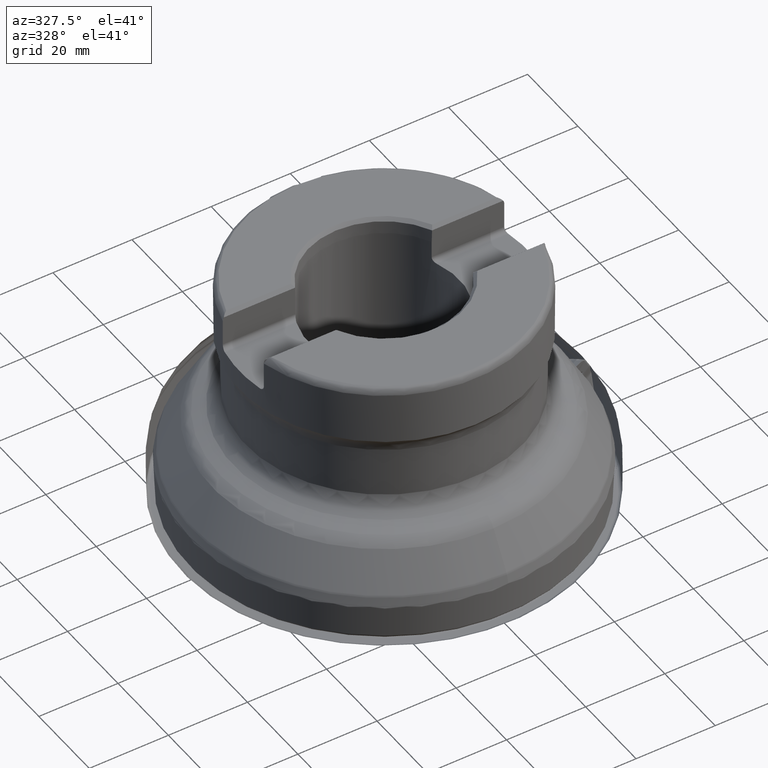
[diagram: clean part render]
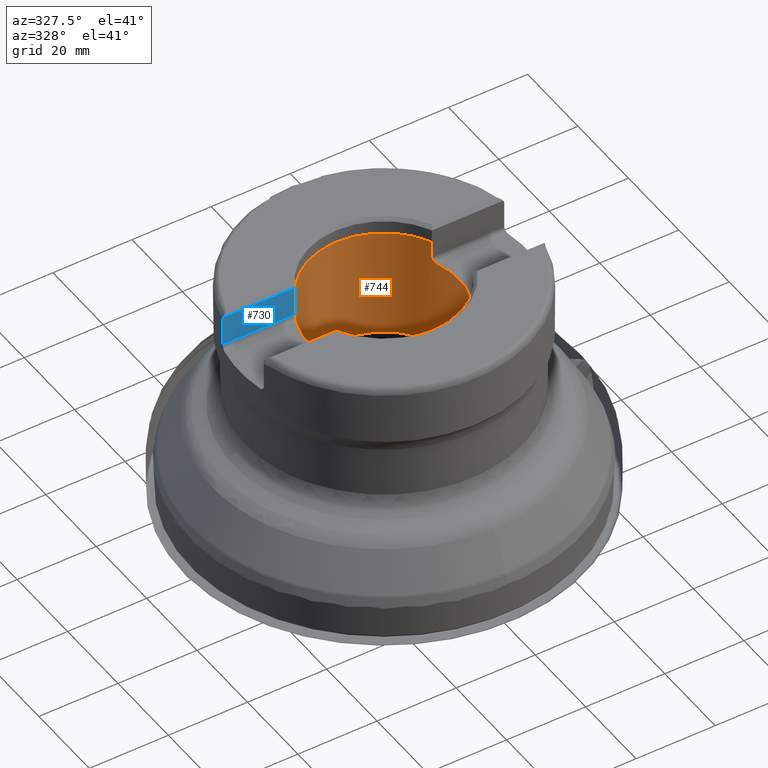
[diagram: same view with the hole feature highlighted: cylindrical wall and planar end face, labeled with their STEP entity ids]
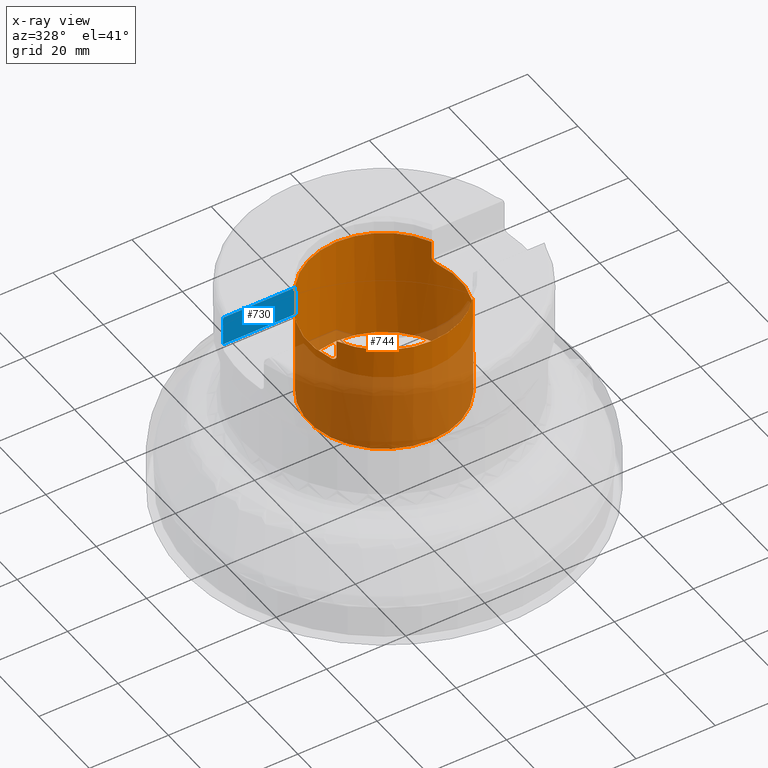
[diagram: x-ray of the same camera — body ghosted, the hole faces saturated]
A machine part, auxiliary view. The highlighted faces form one hole feature of diameter 38.1 mm: the cylindrical wall (entity #744, orange) and its adjacent planar end face (entity #730, blue) — they share a circular edge in the B-rep.
The next image is the same camera in x-ray (body ghosted, the hole faces saturated) — the bore reads through the body.
Wall:
#417=CYLINDRICAL_SURFACE('',#4637,19.05);
#448=FACE_BOUND('',#1337,.T.);
#449=FACE_BOUND('',#1338,.T.);
#596=CIRCLE('',#4632,19.05);
#597=CIRCLE('',#4633,19.05);
#598=CIRCLE('',#4634,19.05);
#599=CIRCLE('',#4635,19.05);
#600=CIRCLE('',#4636,19.05);
#744=ADVANCED_FACE('',(#448,#449),#417,.F.);
#1337=EDGE_LOOP('',(#1826));
#1338=EDGE_LOOP('',(#1827,#1828,#1829,#1830,#1831,#1832,#1833,#1834,#1835,
#1836,#1837,#1838));
#1686=LINE('',#5611,#1722);
#1692=LINE('',#5640,#1728);
#1694=LINE('',#5661,#1730);
#1700=LINE('',#5690,#1736);
#1722=VECTOR('',#4820,1.);
#1728=VECTOR('',#4828,1.);
#1730=VECTOR('',#4832,1.);
#1736=VECTOR('',#4840,1.);
#1826=ORIENTED_EDGE('',*,*,#3516,.T.);
#1827=ORIENTED_EDGE('',*,*,#3517,.T.);
#1828=ORIENTED_EDGE('',*,*,#3482,.T.);
#1829=ORIENTED_EDGE('',*,*,#3518,.F.);
#1830=ORIENTED_EDGE('',*,*,#3519,.T.);
#1831=ORIENTED_EDGE('',*,*,#3520,.F.);
#1832=ORIENTED_EDGE('',*,*,#3462,.T.);
#1833=ORIENTED_EDGE('',*,*,#3521,.T.);
#1834=ORIENTED_EDGE('',*,*,#3470,.T.);
#1835=ORIENTED_EDGE('',*,*,#3522,.F.);
#1836=ORIENTED_EDGE('',*,*,#3523,.T.);
#1837=ORIENTED_EDGE('',*,*,#3524,.F.);
#1838=ORIENTED_EDGE('',*,*,#3474,.T.);
#3060=VERTEX_POINT('',#5610);
#3061=VERTEX_POINT('',#5612);
#3064=VERTEX_POINT('',#5625);
#3068=VERTEX_POINT('',#5639);
#3072=VERTEX_POINT('',#5660);
#3073=VERTEX_POINT('',#5662);
#3076=VERTEX_POINT('',#5675);
#3080=VERTEX_POINT('',#5689);
#3108=VERTEX_POINT('',#5850);
#3109=VERTEX_POINT('',#5868);
#3110=VERTEX_POINT('',#5870);
#3111=VERTEX_POINT('',#5904);
#3112=VERTEX_POINT('',#5906);
#3462=EDGE_CURVE('',#3061,#3060,#1686,.T.);
#3470=EDGE_CURVE('',#3064,#3068,#1692,.T.);
#3474=EDGE_CURVE('',#3073,#3072,#1694,.T.);
#3482=EDGE_CURVE('',#3076,#3080,#1700,.T.);
#3516=EDGE_CURVE('',#3108,#3108,#596,.T.);
#3517=EDGE_CURVE('',#3072,#3076,#597,.T.);
#3518=EDGE_CURVE('',#3109,#3080,#4146,.T.);
#3519=EDGE_CURVE('',#3109,#3110,#598,.T.);
#3520=EDGE_CURVE('',#3061,#3110,#4147,.T.);
#3521=EDGE_CURVE('',#3060,#3064,#599,.T.);
#3522=EDGE_CURVE('',#3111,#3068,#4148,.T.);
#3523=EDGE_CURVE('',#3111,#3112,#600,.T.);
#3524=EDGE_CURVE('',#3073,#3112,#4149,.T.);
#4146=B_SPLINE_CURVE_WITH_KNOTS('',3,(#5852,#5853,#5854,#5855,#5856,#5857,
#5858,#5859,#5860,#5861,#5862,#5863,#5864,#5865,#5866,#5867),
 .UNSPECIFIED.,.F.,.F.,(4,3,3,3,3,4),(0.,0.199103960470918,0.416914410658447,
0.61656256545081,0.808005896815442,1.),.UNSPECIFIED.);
#4147=B_SPLINE_CURVE_WITH_KNOTS('',3,(#5871,#5872,#5873,#5874,#5875,#5876,
#5877,#5878,#5879,#5880,#5881,#5882,#5883,#5884,#5885,#5886),
 .UNSPECIFIED.,.F.,.F.,(4,3,3,3,3,4),(0.,0.0809125531654073,0.293289707834642,
0.524981491384478,0.762639061440075,1.),.UNSPECIFIED.);
#4148=B_SPLINE_CURVE_WITH_KNOTS('',3,(#5888,#5889,#5890,#5891,#5892,#5893,
#5894,#5895,#5896,#5897,#5898,#5899,#5900,#5901,#5902,#5903),
 .UNSPECIFIED.,.F.,.F.,(4,3,3,3,3,4),(0.,0.199103960470919,0.416914410658447,
0.61656256545081,0.808005896815442,1.),.UNSPECIFIED.);
#4149=B_SPLINE_CURVE_WITH_KNOTS('',3,(#5907,#5908,#5909,#5910,#5911,#5912,
#5913,#5914,#5915,#5916,#5917,#5918,#5919,#5920,#5921,#5922),
 .UNSPECIFIED.,.F.,.F.,(4,3,3,3,3,4),(0.,0.0809125531654076,0.293289707834641,
0.524981491384475,0.762639061440075,1.),.UNSPECIFIED.);
#4632=AXIS2_PLACEMENT_3D('',#5849,#4919,#4920);
#4633=AXIS2_PLACEMENT_3D('',#5851,#4921,#4922);
#4634=AXIS2_PLACEMENT_3D('',#5869,#4923,#4924);
#4635=AXIS2_PLACEMENT_3D('',#5887,#4925,#4926);
#4636=AXIS2_PLACEMENT_3D('',#5905,#4927,#4928);
#4637=AXIS2_PLACEMENT_3D('',#5923,#4929,#4930);
#4820=DIRECTION('',(1.17145536458252E-15,1.17145536458252E-15,1.));
#4828=DIRECTION('',(-1.17145536458252E-15,-1.17145536458252E-15,-1.));
#4832=DIRECTION('',(1.17145536458252E-15,1.17145536458252E-15,1.));
#4840=DIRECTION('',(-1.17145536458252E-15,-1.17145536458252E-15,-1.));
#4919=DIRECTION('',(-1.17145536458252E-15,-1.17145536458252E-15,-1.));
#4920=DIRECTION('',(0.,-1.,1.09273919746571E-15));
#4921=DIRECTION('',(1.17145536458252E-15,1.17145536458252E-15,1.));
#4922=DIRECTION('',(0.,-1.,1.09273919746571E-15));
#4923=DIRECTION('',(1.17145536458252E-15,7.45233380313038E-16,1.));
#4924=DIRECTION('',(6.47031582366316E-31,1.,-7.2849279831047E-16));
#4925=DIRECTION('',(1.17145536458252E-15,1.17145536458252E-15,1.));
#4926=DIRECTION('',(0.,-1.,1.09273919746571E-15));
#4927=DIRECTION('',(1.17145536458252E-15,7.45233380313038E-16,1.));
#4928=DIRECTION('',(6.47031582366316E-31,1.,-7.2849279831047E-16));
#4929=DIRECTION('',(-1.17145536458252E-15,-1.17145536458252E-15,-1.));
#4930=DIRECTION('',(0.,-1.,1.17145536458252E-15));
#5610=CARTESIAN_POINT('',(-17.2233243016555,-8.13999999999993,56.325));
#5611=CARTESIAN_POINT('',(-17.2233243016556,-8.13999999999999,2.82302972701837E-14));
#5612=CARTESIAN_POINT('',(-17.2233243016555,-8.13999999999994,51.995));
#5625=CARTESIAN_POINT('',(17.2233243016557,-8.13999999999993,56.325));
#5639=CARTESIAN_POINT('',(17.2233243016557,-8.13999999999994,51.995));
#5640=CARTESIAN_POINT('',(17.2233243016556,-8.13999999999999,-1.21224140280543E-14));
#5660=CARTESIAN_POINT('',(17.2233243016557,8.14000000000007,56.325));
#5661=CARTESIAN_POINT('',(17.2233243016556,8.14000000000003,-2.52668871769096E-14));
#5662=CARTESIAN_POINT('',(17.2233243016557,8.14000000000006,51.995));
#5675=CARTESIAN_POINT('',(-17.2233243016555,8.14000000000007,56.325));
#5689=CARTESIAN_POINT('',(-17.2233243016555,8.14000000000006,51.995));
#5690=CARTESIAN_POINT('',(-17.2233243016556,8.14000000000003,1.50858241213284E-14));
#5849=CARTESIAN_POINT('',(3.31910791357896E-14,3.31910791357896E-14,28.3332));
#5850=CARTESIAN_POINT('',(3.31910791357896E-14,-19.05,28.3332));
#5851=CARTESIAN_POINT('',(6.59822234101107E-14,6.59822234101107E-14,56.325));
#5852=CARTESIAN_POINT('',(-17.7408821652137,6.94000000000006,50.795));
#5853=CARTESIAN_POINT('',(-17.6934245699815,7.0613169459452,50.795));
#5854=CARTESIAN_POINT('',(-17.644213349221,7.18330655195581,50.8136984276106));
#5855=CARTESIAN_POINT('',(-17.5962702416417,7.29888851696712,50.8499240058454));
#5856=CARTESIAN_POINT('',(-17.5439404665724,7.4250459259565,50.8894641286388));
#5857=CARTESIAN_POINT('',(-17.4919085157504,7.54648815902288,50.9508955302173));
#5858=CARTESIAN_POINT('',(-17.4446275718405,7.65424515414695,51.0307106970532));
#5859=CARTESIAN_POINT('',(-17.4012458849818,7.75311543533684,51.1039435111197));
#5860=CARTESIAN_POINT('',(-17.3608924703755,7.84273006959028,51.194390243678));
#5861=CARTESIAN_POINT('',(-17.3273844436799,7.91607531172609,51.2969477198383));
#5862=CARTESIAN_POINT('',(-17.2952664968742,7.9863778277998,51.3952506009289));
#5863=CARTESIAN_POINT('',(-17.2687419754387,8.04330950839282,51.5071211798142));
#5864=CARTESIAN_POINT('',(-17.2508576748311,8.08148559874474,51.6248505330836));
#5865=CARTESIAN_POINT('',(-17.2329444570005,8.11972341622495,51.7427702435852));
#5866=CARTESIAN_POINT('',(-17.2233243016555,8.14000000000006,51.869747965352));
#5867=CARTESIAN_POINT('',(-17.2233243016555,8.14000000000006,51.995));
#5868=CARTESIAN_POINT('',(-17.7408821652137,6.94000000000006,50.795));
#5869=CARTESIAN_POINT('',(5.95040752439693E-14,5.95040752439693E-14,50.795));
#5870=CARTESIAN_POINT('',(-17.7408821652137,-6.93999999999994,50.795));
#5871=CARTESIAN_POINT('',(-17.2233243016555,-8.13999999999994,51.995));
#5872=CARTESIAN_POINT('',(-17.2233243016555,-8.13999999999994,51.9414586919901));
#5873=CARTESIAN_POINT('',(-17.2250300723741,-8.13639362446961,51.8877729552307));
#5874=CARTESIAN_POINT('',(-17.2283957612751,-8.12926069780491,51.8348157540317));
#5875=CARTESIAN_POINT('',(-17.2370983077662,-8.11081733368455,51.6978861330751));
#5876=CARTESIAN_POINT('',(-17.2574676480965,-8.06765313497404,51.5628760739881));
#5877=CARTESIAN_POINT('',(-17.2863282240077,-8.00533300568253,51.4426725726498));
#5878=CARTESIAN_POINT('',(-17.3177876274255,-7.93740109418985,51.3116450265447));
#5879=CARTESIAN_POINT('',(-17.3602583933791,-7.84459305526755,51.1936124797213));
#5880=CARTESIAN_POINT('',(-17.407819966145,-7.73759032427289,51.0984233581973));
#5881=CARTESIAN_POINT('',(-17.4566582160654,-7.6277153597882,51.0006791113958));
#5882=CARTESIAN_POINT('',(-17.5123323522674,-7.49947480001891,50.9236455774448));
#5883=CARTESIAN_POINT('',(-17.5688944391596,-7.36453991676761,50.8726070834726));
#5884=CARTESIAN_POINT('',(-17.6254214683654,-7.22968866736172,50.8216002236147));
#5885=CARTESIAN_POINT('',(-17.6844656884717,-7.08421874150652,50.795));
#5886=CARTESIAN_POINT('',(-17.7408821652137,-6.93999999999994,50.795));
#5887=CARTESIAN_POINT('',(6.59822234101107E-14,6.59822234101107E-14,56.325));
#5888=CARTESIAN_POINT('',(17.7408821652138,-6.93999999999994,50.795));
#5889=CARTESIAN_POINT('',(17.6934245699816,-7.06131694594507,50.795));
#5890=CARTESIAN_POINT('',(17.6442133492211,-7.18330655195569,50.8136984276106));
#5891=CARTESIAN_POINT('',(17.5962702416418,-7.29888851696699,50.8499240058454));
#5892=CARTESIAN_POINT('',(17.5439404665725,-7.42504592595638,50.8894641286387));
#5893=CARTESIAN_POINT('',(17.4919085157505,-7.54648815902276,50.9508955302172));
#5894=CARTESIAN_POINT('',(17.4446275718406,-7.65424515414683,51.0307106970532));
#5895=CARTESIAN_POINT('',(17.401245884982,-7.75311543533672,51.1039435111197));
#5896=CARTESIAN_POINT('',(17.3608924703756,-7.84273006959016,51.194390243678));
#5897=CARTESIAN_POINT('',(17.32738444368,-7.91607531172596,51.2969477198383));
#5898=CARTESIAN_POINT('',(17.2952664968743,-7.98637782779968,51.3952506009289));
#5899=CARTESIAN_POINT('',(17.2687419754388,-8.04330950839269,51.5071211798141));
#5900=CARTESIAN_POINT('',(17.2508576748312,-8.08148559874462,51.6248505330836));
#5901=CARTESIAN_POINT('',(17.2329444570007,-8.11972341622483,51.7427702435851));
#5902=CARTESIAN_POINT('',(17.2233243016557,-8.13999999999994,51.869747965352));
#5903=CARTESIAN_POINT('',(17.2233243016557,-8.13999999999994,51.995));
#5904=CARTESIAN_POINT('',(17.7408821652138,-6.93999999999994,50.795));
#5905=CARTESIAN_POINT('',(5.95040752439693E-14,5.95040752439693E-14,50.795));
#5906=CARTESIAN_POINT('',(17.7408821652138,6.94000000000006,50.795));
#5907=CARTESIAN_POINT('',(17.2233243016557,8.14000000000006,51.995));
#5908=CARTESIAN_POINT('',(17.2233243016557,8.14000000000006,51.94145869199));
#5909=CARTESIAN_POINT('',(17.2250300723742,8.13639362446974,51.8877729552307));
#5910=CARTESIAN_POINT('',(17.2283957612752,8.12926069780503,51.8348157540317));
#5911=CARTESIAN_POINT('',(17.2370983077663,8.11081733368467,51.6978861330751));
#5912=CARTESIAN_POINT('',(17.2574676480966,8.06765313497417,51.562876073988));
#5913=CARTESIAN_POINT('',(17.2863282240079,8.00533300568266,51.4426725726498));
#5914=CARTESIAN_POINT('',(17.3177876274257,7.93740109418997,51.3116450265446));
#5915=CARTESIAN_POINT('',(17.3602583933792,7.84459305526768,51.1936124797213));
#5916=CARTESIAN_POINT('',(17.4078199661451,7.73759032427301,51.0984233581973));
#5917=CARTESIAN_POINT('',(17.4566582160655,7.62771535978833,51.0006791113958));
#5918=CARTESIAN_POINT('',(17.5123323522675,7.49947480001904,50.9236455774447));
#5919=CARTESIAN_POINT('',(17.5688944391597,7.36453991676773,50.8726070834726));
#5920=CARTESIAN_POINT('',(17.6254214683655,7.22968866736185,50.8216002236147));
#5921=CARTESIAN_POINT('',(17.6844656884719,7.08421874150665,50.795));
#5922=CARTESIAN_POINT('',(17.7408821652138,6.94000000000006,50.795));
#5923=CARTESIAN_POINT('',(0.,0.,0.));
End face:
#730=ADVANCED_FACE('',(#1064),#1042,.T.);
#1042=PLANE('',#4593);
#1064=FACE_OUTER_BOUND('',#1312,.T.);
#1312=EDGE_LOOP('',(#1775,#1776,#1777,#1778,#1779,#1780));
#1697=LINE('',#5676,#1733);
#1698=LINE('',#5686,#1734);
#1699=LINE('',#5688,#1735);
#1700=LINE('',#5690,#1736);
#1733=VECTOR('',#4837,1.);
#1734=VECTOR('',#4838,1.);
#1735=VECTOR('',#4839,1.);
#1736=VECTOR('',#4840,1.);
#1775=ORIENTED_EDGE('',*,*,#3477,.F.);
#1776=ORIENTED_EDGE('',*,*,#3478,.T.);
#1777=ORIENTED_EDGE('',*,*,#3479,.T.);
#1778=ORIENTED_EDGE('',*,*,#3480,.T.);
#1779=ORIENTED_EDGE('',*,*,#3481,.T.);
#1780=ORIENTED_EDGE('',*,*,#3482,.F.);
#3075=VERTEX_POINT('',#5674);
#3076=VERTEX_POINT('',#5675);
#3077=VERTEX_POINT('',#5677);
#3078=VERTEX_POINT('',#5685);
#3079=VERTEX_POINT('',#5687);
#3080=VERTEX_POINT('',#5689);
#3477=EDGE_CURVE('',#3075,#3076,#4136,.T.);
#3478=EDGE_CURVE('',#3075,#3077,#1697,.T.);
#3479=EDGE_CURVE('',#3077,#3078,#4137,.T.);
#3480=EDGE_CURVE('',#3078,#3079,#1698,.T.);
#3481=EDGE_CURVE('',#3079,#3080,#1699,.T.);
#3482=EDGE_CURVE('',#3076,#3080,#1700,.T.);
#4136=B_SPLINE_CURVE_WITH_KNOTS('',3,(#5667,#5668,#5669,#5670,#5671,#5672,
#5673),.UNSPECIFIED.,.F.,.F.,(4,3,4),(0.,0.402362137915471,1.),
 .UNSPECIFIED.);
#4137=B_SPLINE_CURVE_WITH_KNOTS('',3,(#5678,#5679,#5680,#5681,#5682,#5683,
#5684),.UNSPECIFIED.,.F.,.F.,(4,3,4),(0.,0.629880144461629,1.),
 .UNSPECIFIED.);
#4593=AXIS2_PLACEMENT_3D('',#5691,#4841,#4842);
#4837=DIRECTION('',(-1.,6.39711790766089E-31,-7.49393809079628E-46));
#4838=DIRECTION('',(0.,-1.17145536458252E-15,-1.));
#4839=DIRECTION('',(1.,-1.37230767120917E-30,-1.17145536458252E-15));
#4840=DIRECTION('',(-1.17145536458252E-15,-1.17145536458252E-15,-1.));
#4841=DIRECTION('',(-6.39711790766089E-31,-1.,6.25372423561493E-16));
#4842=DIRECTION('',(1.16573417585641E-15,6.26235174827627E-16,1.));
#5667=CARTESIAN_POINT('',(-17.3159611096582,8.14000000000007,59.525));
#5668=CARTESIAN_POINT('',(-17.3035426313205,8.14000000000007,59.0958135446925));
#5669=CARTESIAN_POINT('',(-17.2911217371745,8.14000000000007,58.6666271592793));
#5670=CARTESIAN_POINT('',(-17.2786984115604,8.14000000000007,58.2374408442548));
#5671=CARTESIAN_POINT('',(-17.2602457564619,8.14000000000007,57.5999604070386));
#5672=CARTESIAN_POINT('',(-17.241787737125,8.14000000000007,56.9624801250739));
#5673=CARTESIAN_POINT('',(-17.2233243016555,8.14000000000007,56.325));
#5674=CARTESIAN_POINT('',(-17.3159611096582,8.14000000000007,59.525));
#5675=CARTESIAN_POINT('',(-17.2233243016555,8.14000000000007,56.325));
#5676=CARTESIAN_POINT('',(67.0000000000001,8.14000000000007,59.525));
#5677=CARTESIAN_POINT('',(-35.3058338766025,8.14000000000007,59.525));
#5678=CARTESIAN_POINT('',(-35.3058338766025,8.14000000000007,59.525));
#5679=CARTESIAN_POINT('',(-35.4173503525129,8.14000000000007,59.3367854382988));
#5680=CARTESIAN_POINT('',(-35.4984084155812,8.14000000000007,59.12700934786));
#5681=CARTESIAN_POINT('',(-35.5418608339785,8.14000000000007,58.9125972843671));
#5682=CARTESIAN_POINT('',(-35.5676513600941,8.14000000000007,58.7853362451212));
#5683=CARTESIAN_POINT('',(-35.5807588451961,8.1400000000001,58.6548480779499));
#5684=CARTESIAN_POINT('',(-35.5807588451961,8.1400000000001,58.525));
#5685=CARTESIAN_POINT('',(-35.5807588451961,8.1400000000001,58.525));
#5686=CARTESIAN_POINT('',(-35.5807588451961,8.14000000000003,-5.09053152779058E-15));
#5687=CARTESIAN_POINT('',(-35.5807588451961,8.14000000000006,51.995));
#5688=CARTESIAN_POINT('',(67.0000000000001,8.14000000000006,51.9949999999999));
#5689=CARTESIAN_POINT('',(-17.2233243016555,8.14000000000006,51.995));
#5690=CARTESIAN_POINT('',(-17.2233243016556,8.14000000000003,1.50858241213284E-14));
#5691=CARTESIAN_POINT('',(67.0000000000001,8.14000000000006,50.7949999999999));